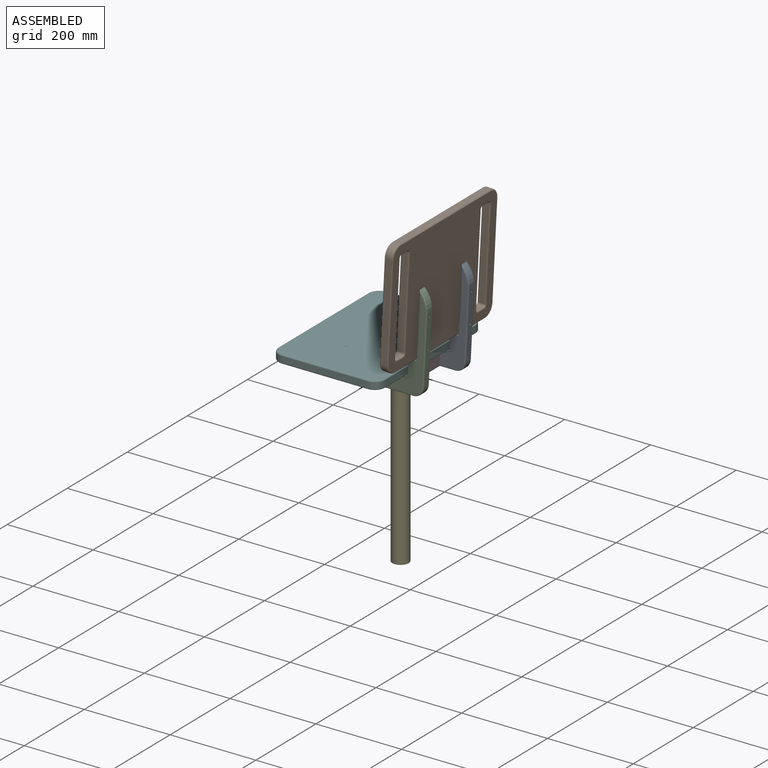
[diagram: assembled view]
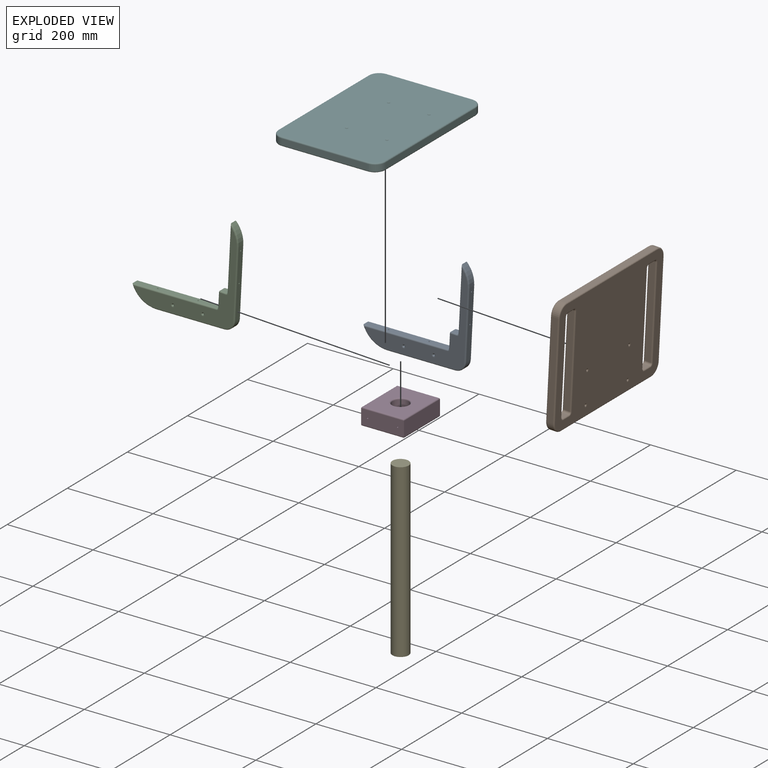
[diagram: exploded view]
GUIDED TOUR — MATED ASSEMBLY (Onshape document 94bc083dbefceb046840a97f, AutoMate assembly 94bc083dbefceb046840a97f_ca4e37d3504dc3343657e244_e1d1bcb1ffec760abd4adb8a_default)

This assembly has 6 components, labeled P0..P5 below (a component is one placed occurrence of a part; the same part can appear more than once), held together by 5 mates. A mate is a constraint between two components; its type names the relative motion it leaves free:
  FASTENED — locks the two components together rigidly (no relative motion).
Axis/direction vectors are unit vectors and 'through' points are millimeter coordinates, both in the assembly's world frame.

MATES
  1. FASTENED "Fastened 5": P4 <-> P3, direction (0.000, 0.000, 1.000) through (-235.38, -67.48, 68.78) mm
  2. FASTENED "Fastened 1": P1 <-> P2, direction (0.999, 0.000, -0.050) through (-142.18, -137.48, 171.57) mm
  3. FASTENED "Fastened 3": P5 <-> P2, direction (0.000, 0.000, -1.000) through (-217.80, -137.48, 108.78) mm
  4. FASTENED "Fastened 4": P3 <-> P2, direction (0.000, -1.000, 0.000) through (-200.38, -127.48, 88.78) mm
  5. FASTENED "Fastened 2": P1 <-> P0, direction (0.999, 0.000, -0.050) through (-142.18, 2.52, 171.57) mm

ASSEMBLY ORDER
  1. P0 — the base component [order verified]
  2. P2 [order verified]
  3. P1 [order verified]
  4. P5 [order verified]
  5. P3 [order verified]
  6. P4 [order verified]
Order-tag legend:
  [order verified] — this step's position reverses a verified removal order: the component was checked to insert without passing through the ones already placed.

Of the 6 components, 6 carry the full construction recipe — the FeatureScript program that regenerates the part's solid from scratch; the rest are supplied as boundary geometry only.
Each toured component is shown spotlighted twice — in the assembled view, then in the exploded view, where a leader line traces a displaced component back to its assembled socket (saturated green if recipe-attached, orange if geometry-only; every other component desaturated gray) — followed by its recipe or geometry summary and the mates that hold it.
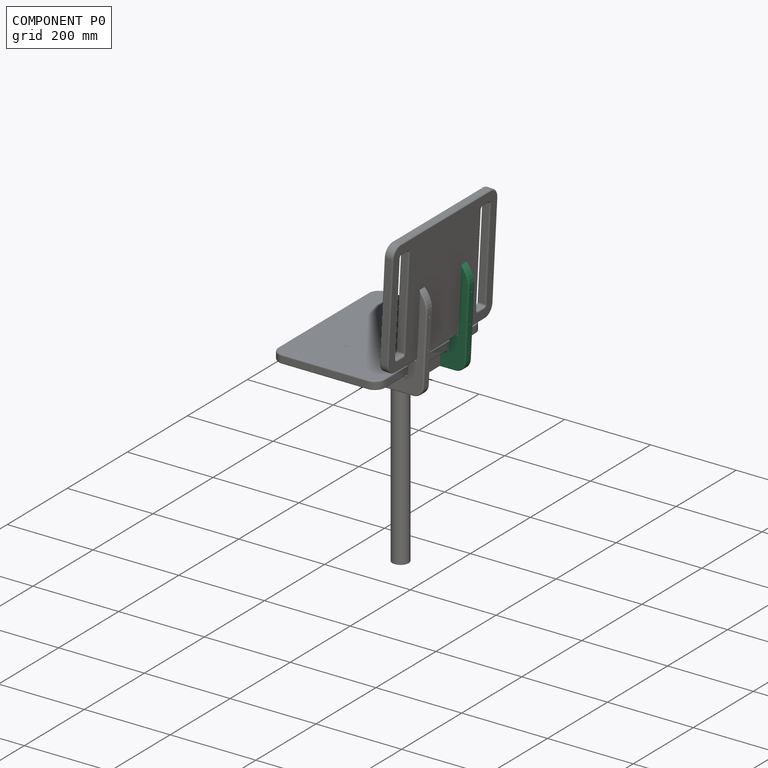
[diagram: component P0 — assembled]
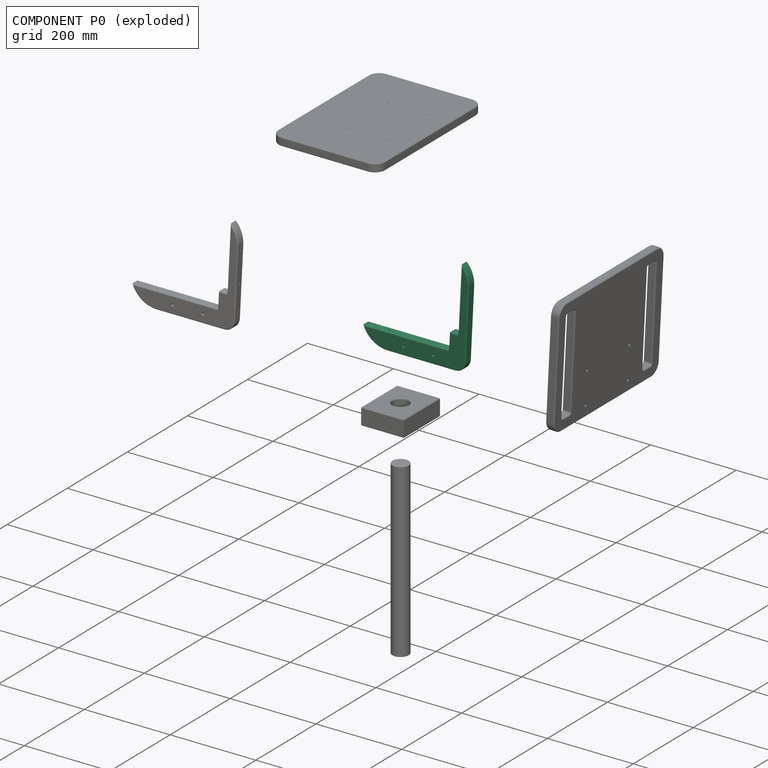
[diagram: component P0 — exploded]
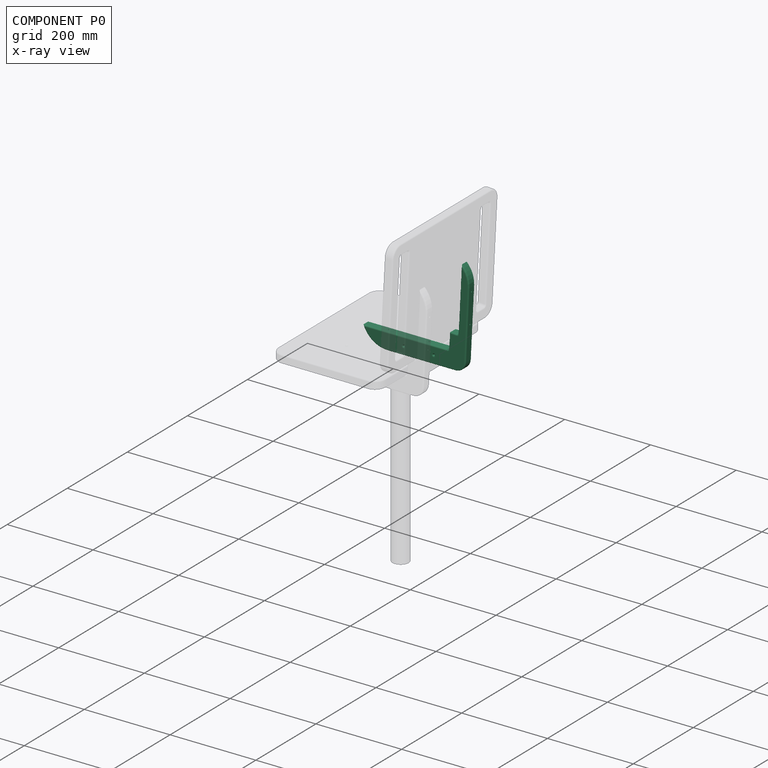
[diagram: component P0 — x-ray view]
COMPONENT P0 — recipe-attached (CADFS 00495782, mesh-verified: the recipe's output STEP matches this component's geometry to below the mesh-comparison resolution (tessellation chordal tolerance ~0.505 mm)).
Held by: FASTENED mate "Fastened 2" to P1.
Construction recipe (FeatureScript — the CAD program that rebuilds this solid; sketch coordinates are in the units given by the * unit suffixes, e.g. mm):

FeatureScript 1511;
import(path : "onshape/std/geometry.fs", version : "1511.0");
import(path : "onshape/std/common.fs", version : "1511.0");
const mm = millimeter;
const VERTEX = EntityType.VERTEX;
const EDGE = EntityType.EDGE;
const FACE = EntityType.FACE;
const BODY = EntityType.BODY;
function v(x, y){return vector(x, y);}
function OD(order){return orderDisambiguation(order);}
function OSD(set){return originalSetDisambiguation(set);}
function TD(topology){return topologyDisambiguation(topology);}
function TDD(query){return trueDependencyDisambiguation(query);}
function sQuery(a, b, c) {return sketchEntityQuery(a, b, c);}

annotation { "Feature Type Name" : "Feature", "Feature Type Description" : "" }
export const myFeature = defineFeature(function(context is Context, id is Id, definition is map)
    precondition{}
    {
        {
            var Q0;
            Q0=qCreatedBy(makeId("Front.planeOp"),FACE);
            var sketch = newSketch(context, id + "F0", { "sketchPlane" : qUnion([Q0])});
            skLineSegment(sketch, "E0", {"start": v(-200, -0.28) * mm, "end": v(-2.85, -0.28) * mm});
            skLineSegment(sketch, "E1", {"start": v(0.14, 2.57) * mm, "end": v(1.8, 35.56) * mm});
            skLineSegment(sketch, "E2.0", {"start": v(39.23, -16.54) * mm, "end": v(47.22, 141.68) * mm});
            skLineSegment(sketch, "E2.1", {"start": v(-143.43, -40.28) * mm, "end": v(14.26, -40.28) * mm});
            skArc(sketch, "E3", {"start": v(47.22, 141.68) * mm, "mid": v(43.23, 166.41) * mm, "end": v(29.5, 187.36) * mm});
            skArc(sketch, "E4", {"start": v(-143.43, -40.28) * mm, "mid": v(-178.07, -29.27) * mm, "end": v(-200, -0.28) * mm});
            skPoint(sketch, "E5.visualSharp", {"position": v(38.03, -40.28) * mm});
            skArc(sketch, "E5.filletArc", {"start": v(14.26, -40.28) * mm, "mid": v(31.49, -33.4) * mm, "end": v(39.23, -16.54) * mm});
            skPoint(sketch, "E6.firstSnap0", {"position": v(-178.07, -29.27) * mm});
            skLineSegment(sketch, "E7", {"start": v(4.96, 38.4) * mm, "end": v(18.94, 37.7) * mm});
            skLineSegment(sketch, "E8", {"start": v(22.09, 40.54) * mm, "end": v(29.5, 187.36) * mm});
            skPoint(sketch, "E9.visualSharp", {"position": v(21.93, 37.55) * mm});
            skArc(sketch, "E9.filletArc", {"start": v(18.94, 37.7) * mm, "mid": v(21.1, 38.47) * mm, "end": v(22.09, 40.54) * mm});
            skPoint(sketch, "E10.visualSharp", {"position": v(1.96, 38.56) * mm});
            skArc(sketch, "E10.filletArc", {"start": v(4.96, 38.4) * mm, "mid": v(2.8, 37.63) * mm, "end": v(1.8, 35.56) * mm});
            skCircle(sketch, "E11", {"center": v(-105, -20.28) * mm, "radius": 1.5 * mm});
            skCircle(sketch, "E12", {"center": v(-35, -20.28) * mm, "radius": 1.5 * mm});
            skLineSegment(sketch, "E13", {"start": v(-35, -20.28) * mm, "end": v(-105, -20.28) * mm});
            skPoint(sketch, "E14.visualSharp", {"position": v(0, -0.28) * mm});
            skArc(sketch, "E14.filletArc", {"start": v(-2.85, -0.28) * mm, "mid": v(-0.79, 0.55) * mm, "end": v(0.14, 2.57) * mm});
            skLineSegment(sketch, "E15", {"start": v(-35, -20.28) * mm, "end": v(-35, -40.28) * mm});
            skLineSegment(sketch, "E16", {"start": v(-35, -20.28) * mm, "end": v(0, -20.28) * mm});
            skSolve(sketch);
        }
        {
            var Q0;
            Q0=makeQuery(id+"F0.imprint","IMPRINT",FACE,{"disambiguationData":[TD([[makeQuery(id+"F0.imprint","IMPRINT",EDGE,{"derivedFrom":sQuery(id+"F0.wireOp",EDGE,"E0")}),-1.0]])]});
            extrude(context, id + "F1", {"entities" : qUnion([Q0]), "endBound" : BoundingType.SYMMETRIC, "depth" : 20 * mm});
        }
        {
            var Q0;
            Q0=makeQuery(id+"F1.opExtrude","CAP_FACE",FACE,{"disambiguationData":[OSD([sQuery(id+"F0.wireOp",EDGE,"E0"),sQuery(id+"F0.wireOp",EDGE,"E1"),sQuery(id+"F0.wireOp",EDGE,"E2.0"),sQuery(id+"F0.wireOp",EDGE,"E2.1"),sQuery(id+"F0.wireOp",EDGE,"E3"),sQuery(id+"F0.wireOp",EDGE,"E4"),sQuery(id+"F0.wireOp",EDGE,"E5.filletArc"),sQuery(id+"F0.wireOp",EDGE,"E7"),sQuery(id+"F0.wireOp",EDGE,"E8"),sQuery(id+"F0.wireOp",EDGE,"E9.filletArc"),sQuery(id+"F0.wireOp",EDGE,"E10.filletArc"),sQuery(id+"F0.wireOp",EDGE,"E11"),sQuery(id+"F0.wireOp",EDGE,"E12")])],"isStart":false});
            var Q1;
            Q1=makeQuery(id+"F1.opExtrude","CAP_FACE",FACE,{"disambiguationData":[OSD([sQuery(id+"F0.wireOp",EDGE,"E0"),sQuery(id+"F0.wireOp",EDGE,"E1"),sQuery(id+"F0.wireOp",EDGE,"E2.0"),sQuery(id+"F0.wireOp",EDGE,"E2.1"),sQuery(id+"F0.wireOp",EDGE,"E3"),sQuery(id+"F0.wireOp",EDGE,"E4"),sQuery(id+"F0.wireOp",EDGE,"E5.filletArc"),sQuery(id+"F0.wireOp",EDGE,"E7"),sQuery(id+"F0.wireOp",EDGE,"E8"),sQuery(id+"F0.wireOp",EDGE,"E9.filletArc"),sQuery(id+"F0.wireOp",EDGE,"E10.filletArc"),sQuery(id+"F0.wireOp",EDGE,"E11"),sQuery(id+"F0.wireOp",EDGE,"E12")])],"isStart":true});
            fillet(context, id + "F2", {"entities" : qUnion([Q0, Q1]), "radius" : 3 * mm, "tangentPropagation" : true, "allowEdgeOverflow" : false});
        }
        {
            var Q0;
            Q0=makeQuery(id+"F1.opExtrude","SWEPT_FACE",FACE,{"disambiguationData":[OSD([sQuery(id+"F0.wireOp",EDGE,"E0")])]});
            var sketch = newSketch(context, id + "F3", { "sketchPlane" : qUnion([Q0])});
            skLineSegment(sketch, "E17", {"start": v(-2.85, 0) * mm, "end": v(-52.42, 0) * mm});
            skPoint(sketch, "E17.endSnap0", {"position": v(-2.85, 0) * mm});
            skLineSegment(sketch, "E18", {"start": v(-52.42, 0) * mm, "end": v(-146.52, 0) * mm});
            skSolve(sketch);
        }
        {
            var Q0;
            Q0=makeQuery(id+"F1.opExtrude","SWEPT_FACE",FACE,{"disambiguationData":[OSD([sQuery(id+"F0.wireOp",EDGE,"E8")])]});
            var sketch = newSketch(context, id + "F4", { "sketchPlane" : qUnion([Q0])});
            skLineSegment(sketch, "E19", {"start": v(0, 41.6) * mm, "end": v(0, 63.6) * mm});
            skPoint(sketch, "E19.endSnap0", {"position": v(0, 41.6) * mm});
            skLineSegment(sketch, "E20", {"start": v(0, 63.6) * mm, "end": v(0, 133.6) * mm});
            skSolve(sketch);
        }
        {
            var Q0;
            Q0=sQuery(id+"F4.wireOp",VERTEX,"E20.start");
            var Q1;
            Q1=sQuery(id+"F4.wireOp",VERTEX,"E20.end");
            var Q2;
            Q2=makeQuery(id+"F1.opExtrude","SWEPT_BODY",BODY,{"disambiguationData":[OSD([sQuery(id+"F0.wireOp",EDGE,"E0"),sQuery(id+"F0.wireOp",EDGE,"E1"),sQuery(id+"F0.wireOp",EDGE,"E2.0"),sQuery(id+"F0.wireOp",EDGE,"E2.1"),sQuery(id+"F0.wireOp",EDGE,"E3"),sQuery(id+"F0.wireOp",EDGE,"E4"),sQuery(id+"F0.wireOp",EDGE,"E5.filletArc"),sQuery(id+"F0.wireOp",EDGE,"E7"),sQuery(id+"F0.wireOp",EDGE,"E8"),sQuery(id+"F0.wireOp",EDGE,"E9.filletArc"),sQuery(id+"F0.wireOp",EDGE,"E10.filletArc"),sQuery(id+"F0.wireOp",EDGE,"E11"),sQuery(id+"F0.wireOp",EDGE,"E12"),sQuery(id+"F0.wireOp",EDGE,"E14.filletArc")])]});
            hole(context, id + "F5", {"style" : HoleStyle.SIMPLE, "endStyle" : HoleEndStyle.BLIND, "holeDiameter" : 3 * mm, "holeDepth" : 40 * mm, "isTappedThrough" : true, "tappedDepth" : 12 * mm, "tapClearance" : 3, "locations" : qUnion([Q0, Q1]), "scope" : qUnion([Q2])});
        }
        {
            var Q0;
            Q0=sQuery(id+"F3.wireOp",VERTEX,"E18.start");
            var Q1;
            Q1=sQuery(id+"F3.wireOp",VERTEX,"E18.end");
            var Q2;
            Q2=makeQuery(id+"F1.opExtrude","SWEPT_BODY",BODY,{"disambiguationData":[OSD([sQuery(id+"F0.wireOp",EDGE,"E0"),sQuery(id+"F0.wireOp",EDGE,"E1"),sQuery(id+"F0.wireOp",EDGE,"E2.0"),sQuery(id+"F0.wireOp",EDGE,"E2.1"),sQuery(id+"F0.wireOp",EDGE,"E3"),sQuery(id+"F0.wireOp",EDGE,"E4"),sQuery(id+"F0.wireOp",EDGE,"E5.filletArc"),sQuery(id+"F0.wireOp",EDGE,"E7"),sQuery(id+"F0.wireOp",EDGE,"E8"),sQuery(id+"F0.wireOp",EDGE,"E9.filletArc"),sQuery(id+"F0.wireOp",EDGE,"E10.filletArc"),sQuery(id+"F0.wireOp",EDGE,"E11"),sQuery(id+"F0.wireOp",EDGE,"E12"),sQuery(id+"F0.wireOp",EDGE,"E14.filletArc")])]});
            hole(context, id + "F6", {"style" : HoleStyle.SIMPLE, "endStyle" : HoleEndStyle.BLIND, "holeDiameter" : 3 * mm, "holeDepth" : 40 * mm, "isTappedThrough" : true, "tappedDepth" : 12 * mm, "tapClearance" : 3, "locations" : qUnion([Q0, Q1]), "scope" : qUnion([Q2])});
        }
    });
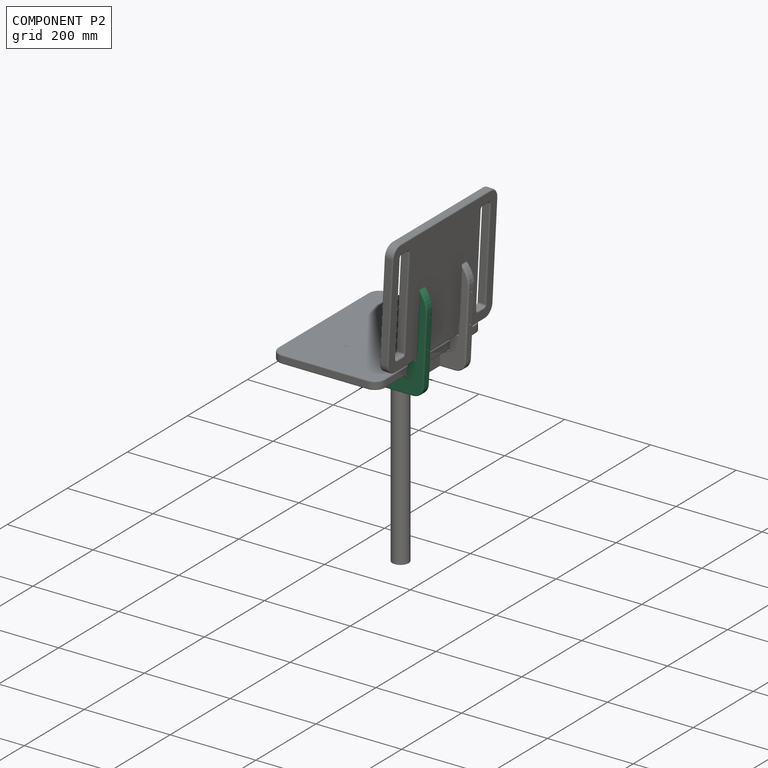
[diagram: component P2 — assembled]
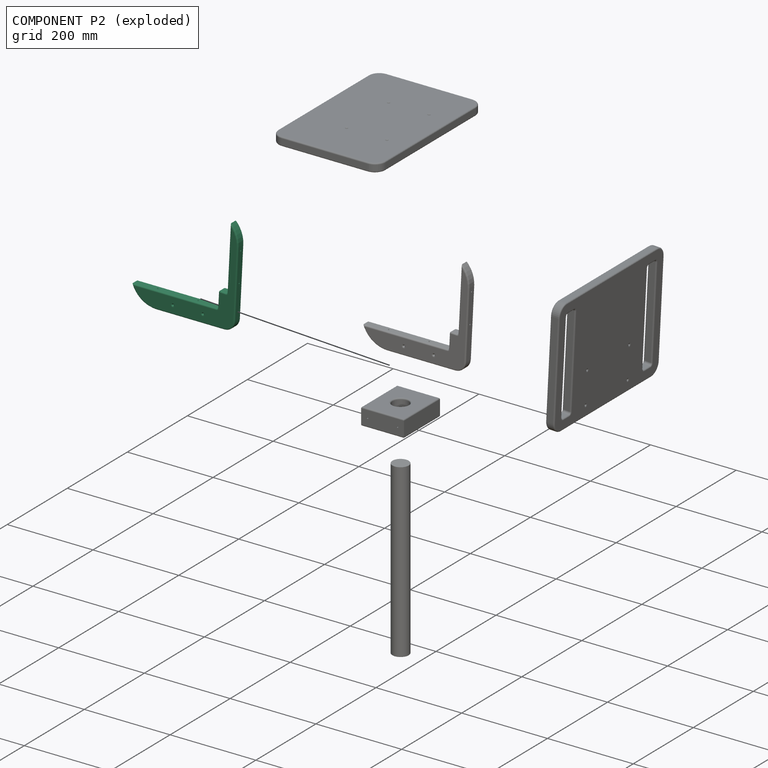
[diagram: component P2 — exploded]
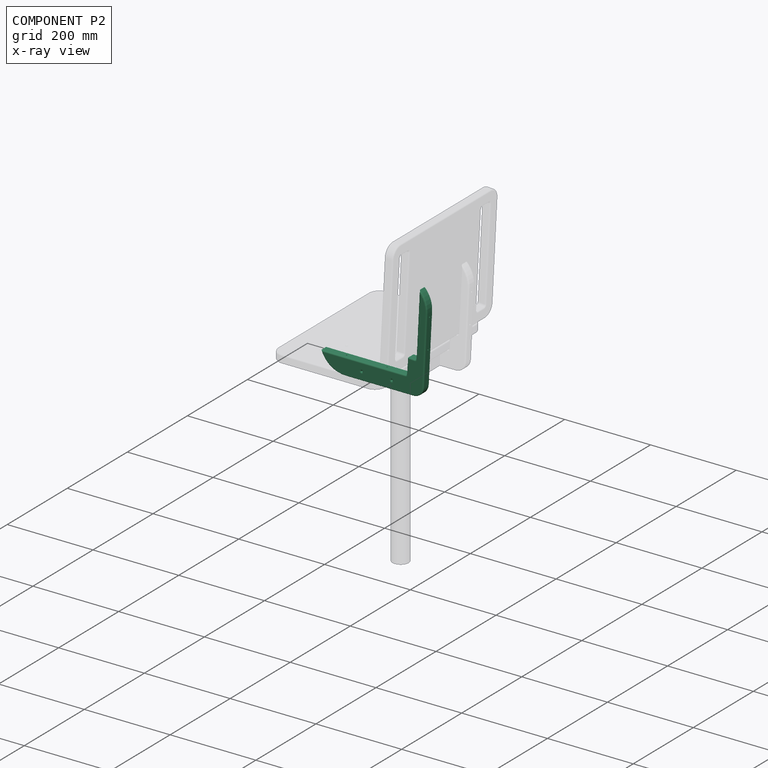
[diagram: component P2 — x-ray view]
COMPONENT P2 — same part as P0 (CADFS 00495782); its construction recipe is shown at P0.
Held by: FASTENED mate "Fastened 1" to P1; FASTENED mate "Fastened 3" to P5; FASTENED mate "Fastened 4" to P3.
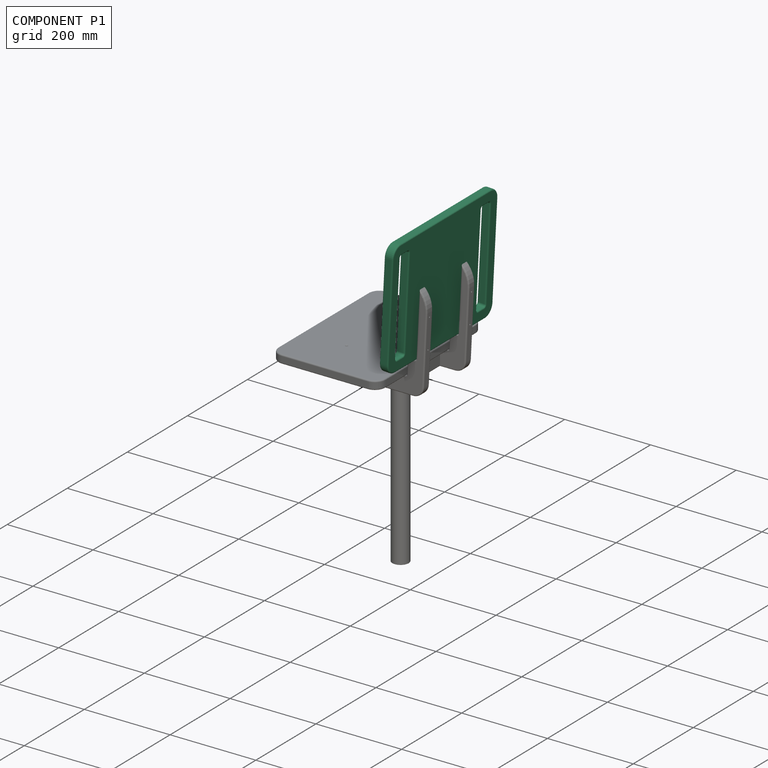
[diagram: component P1 — assembled]
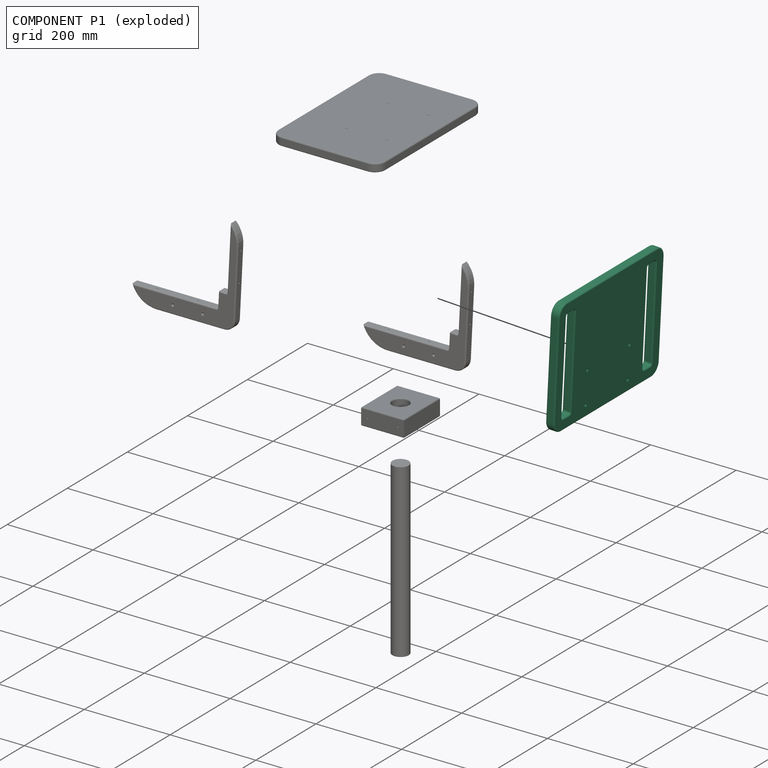
[diagram: component P1 — exploded]
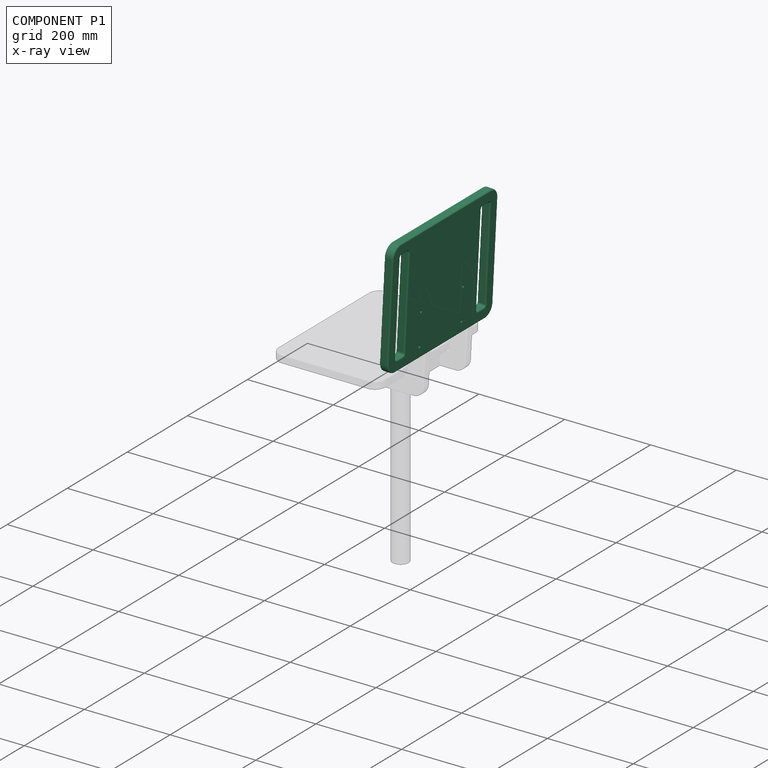
[diagram: component P1 — x-ray view]
COMPONENT P1 — recipe-attached (CADFS 00495779, mesh-verified: the recipe's output STEP matches this component's geometry to below the mesh-comparison resolution (tessellation chordal tolerance ~0.668 mm)).
Held by: FASTENED mate "Fastened 1" to P2; FASTENED mate "Fastened 2" to P0.
Construction recipe (FeatureScript — the CAD program that rebuilds this solid; sketch coordinates are in the units given by the * unit suffixes, e.g. mm):

FeatureScript 1511;
import(path : "onshape/std/geometry.fs", version : "1511.0");
import(path : "onshape/std/common.fs", version : "1511.0");
const mm = millimeter;
const VERTEX = EntityType.VERTEX;
const EDGE = EntityType.EDGE;
const FACE = EntityType.FACE;
const BODY = EntityType.BODY;
function v(x, y){return vector(x, y);}
function OD(order){return orderDisambiguation(order);}
function OSD(set){return originalSetDisambiguation(set);}
function TD(topology){return topologyDisambiguation(topology);}
function TDD(query){return trueDependencyDisambiguation(query);}
function sQuery(a, b, c) {return sketchEntityQuery(a, b, c);}

annotation { "Feature Type Name" : "Feature", "Feature Type Description" : "" }
export const myFeature = defineFeature(function(context is Context, id is Id, definition is map)
    precondition{}
    {
        {
            var Q0;
            Q0=qCreatedBy(makeId("Front.planeOp"),FACE);
            var sketch = newSketch(context, id + "F0", { "sketchPlane" : qUnion([Q0])});
            skPoint(sketch, "E0", {"position": v(0, -0.73) * mm});
            skLineSegment(sketch, "E1", {"start": v(0, 24.04) * mm, "end": v(0, -0.73) * mm});
            skLineSegment(sketch, "E2", {"start": v(0, 174.27) * mm, "end": v(-150, 174.27) * mm});
            skLineSegment(sketch, "E3", {"start": v(-175, 149.27) * mm, "end": v(-175, 24.27) * mm});
            skLineSegment(sketch, "E4", {"start": v(-150, -100.73) * mm, "end": v(0, -100.73) * mm});
            skLineSegment(sketch, "E5", {"start": v(-175, 24.27) * mm, "end": v(-175, -75.73) * mm});
            skPoint(sketch, "E6.visualSharp", {"position": v(-175, 174.27) * mm});
            skArc(sketch, "E6.filletArc", {"start": v(-150, 174.27) * mm, "mid": v(-167.68, 166.94) * mm, "end": v(-175, 149.27) * mm});
            skPoint(sketch, "E7.visualSharp", {"position": v(-175, -100.73) * mm});
            skArc(sketch, "E7.filletArc", {"start": v(-175, -75.73) * mm, "mid": v(-167.68, -93.41) * mm, "end": v(-150, -100.73) * mm});
            skCircle(sketch, "E8", {"center": v(-70, -0.73) * mm, "radius": 1.5 * mm});
            skCircle(sketch, "E9", {"center": v(-70, -75.73) * mm, "radius": 1.5 * mm});
            skLineSegment(sketch, "E10.MirrorCS", {"start": v(0, 174.27) * mm, "end": v(150, 174.27) * mm});
            skArc(sketch, "E11.MirrorCS", {"start": v(150, 174.27) * mm, "mid": v(167.68, 166.94) * mm, "end": v(175, 149.27) * mm});
            skLineSegment(sketch, "E12.MirrorCS", {"start": v(175, 149.27) * mm, "end": v(175, 24.27) * mm});
            skArc(sketch, "E13.MirrorCS", {"start": v(175, -75.73) * mm, "mid": v(167.68, -93.41) * mm, "end": v(150, -100.73) * mm});
            skLineSegment(sketch, "E14.MirrorCS", {"start": v(150, -100.73) * mm, "end": v(0, -100.73) * mm});
            skLineSegment(sketch, "E15.MirrorCS", {"start": v(175, 24.27) * mm, "end": v(175, -75.73) * mm});
            skCircle(sketch, "E16.MirrorC", {"center": v(70, -0.73) * mm, "radius": 1.5 * mm});
            skCircle(sketch, "E17.MirrorC", {"center": v(70, -75.73) * mm, "radius": 1.5 * mm});
            skLineSegment(sketch, "E18", {"start": v(0, -0.73) * mm, "end": v(0, -82.47) * mm});
            skLineSegment(sketch, "E19", {"start": v(0, -82.47) * mm, "end": v(0, 86.66) * mm});
            skLineSegment(sketch, "E20", {"start": v(-70, -0.73) * mm, "end": v(0, -0.73) * mm});
            skLineSegment(sketch, "E21", {"start": v(0, -0.73) * mm, "end": v(70, -0.73) * mm});
            skLineSegment(sketch, "E22", {"start": v(70, -75.73) * mm, "end": v(0, -75.73) * mm});
            skLineSegment(sketch, "E23", {"start": v(0, -75.73) * mm, "end": v(-70, -75.73) * mm});
            skLineSegment(sketch, "E24", {"start": v(-70, -75.73) * mm, "end": v(-70, -100.73) * mm});
            skLineSegment(sketch, "E25.bottom", {"start": v(-145, 149.27) * mm, "end": v(-125, 149.27) * mm});
            skLineSegment(sketch, "E25.top", {"start": v(-145, -75.73) * mm, "end": v(-125, -75.73) * mm});
            skLineSegment(sketch, "E25.left", {"start": v(-150, 144.27) * mm, "end": v(-150, -70.73) * mm});
            skLineSegment(sketch, "E25.right", {"start": v(-120, 144.27) * mm, "end": v(-120, -70.73) * mm});
            skLineSegment(sketch, "E26.bottom", {"start": v(145, 149.27) * mm, "end": v(125, 149.27) * mm});
            skLineSegment(sketch, "E26.top", {"start": v(145, -75.73) * mm, "end": v(125, -75.73) * mm});
            skLineSegment(sketch, "E26.left", {"start": v(150, 144.27) * mm, "end": v(150, -70.73) * mm});
            skLineSegment(sketch, "E26.right", {"start": v(120, 144.27) * mm, "end": v(120, -70.73) * mm});
            skArc(sketch, "E27.filletArc", {"start": v(-145, 149.27) * mm, "mid": v(-148.54, 147.8) * mm, "end": v(-150, 144.27) * mm});
            skPoint(sketch, "E28.visualSharp", {"position": v(-120, 149.27) * mm});
            skArc(sketch, "E28.filletArc", {"start": v(-120, 144.27) * mm, "mid": v(-121.46, 147.8) * mm, "end": v(-125, 149.27) * mm});
            skPoint(sketch, "E29.visualSharp", {"position": v(-120, -75.73) * mm});
            skArc(sketch, "E29.filletArc", {"start": v(-125, -75.73) * mm, "mid": v(-121.46, -74.27) * mm, "end": v(-120, -70.73) * mm});
            skArc(sketch, "E30.filletArc", {"start": v(-150, -70.73) * mm, "mid": v(-148.54, -74.27) * mm, "end": v(-145, -75.73) * mm});
            skArc(sketch, "E31.filletArc", {"start": v(150, 144.27) * mm, "mid": v(148.54, 147.8) * mm, "end": v(145, 149.27) * mm});
            skArc(sketch, "E32.filletArc", {"start": v(145, -75.73) * mm, "mid": v(148.54, -74.27) * mm, "end": v(150, -70.73) * mm});
            skPoint(sketch, "E33.visualSharp", {"position": v(120, -75.73) * mm});
            skArc(sketch, "E33.filletArc", {"start": v(120, -70.73) * mm, "mid": v(121.46, -74.27) * mm, "end": v(125, -75.73) * mm});
            skPoint(sketch, "E34.visualSharp", {"position": v(120, 149.27) * mm});
            skArc(sketch, "E34.filletArc", {"start": v(125, 149.27) * mm, "mid": v(121.46, 147.8) * mm, "end": v(120, 144.27) * mm});
            skSolve(sketch);
        }
        {
            var Q0;
            Q0=makeQuery(id+"F0.imprint","IMPRINT",FACE,{"disambiguationData":[TD([[makeQuery(id+"F0.imprint","IMPRINT",EDGE,{"derivedFrom":sQuery(id+"F0.wireOp",EDGE,"E2")}),1.0]])]});
            extrude(context, id + "F1", {"entities" : qUnion([Q0]), "endBound" : BoundingType.SYMMETRIC, "depth" : 20 * mm});
        }
        {
            var Q0;
            Q0=makeQuery(id+"F1.opExtrude","CAP_FACE",FACE,{"disambiguationData":[OSD([sQuery(id+"F0.wireOp",EDGE,"E2"),sQuery(id+"F0.wireOp",EDGE,"E3"),sQuery(id+"F0.wireOp",EDGE,"E4"),sQuery(id+"F0.wireOp",EDGE,"E5"),sQuery(id+"F0.wireOp",EDGE,"E6.filletArc"),sQuery(id+"F0.wireOp",EDGE,"E7.filletArc"),sQuery(id+"F0.wireOp",EDGE,"E8"),sQuery(id+"F0.wireOp",EDGE,"E9"),sQuery(id+"F0.wireOp",EDGE,"E10.MirrorCS"),sQuery(id+"F0.wireOp",EDGE,"E11.MirrorCS"),sQuery(id+"F0.wireOp",EDGE,"E12.MirrorCS"),sQuery(id+"F0.wireOp",EDGE,"E13.MirrorCS"),sQuery(id+"F0.wireOp",EDGE,"E14.MirrorCS"),sQuery(id+"F0.wireOp",EDGE,"E15.MirrorCS"),sQuery(id+"F0.wireOp",EDGE,"E16.MirrorC"),sQuery(id+"F0.wireOp",EDGE,"E17.MirrorC")])],"isStart":true});
            var Q1;
            Q1=makeQuery(id+"F1.opExtrude","CAP_FACE",FACE,{"disambiguationData":[OSD([sQuery(id+"F0.wireOp",EDGE,"E2"),sQuery(id+"F0.wireOp",EDGE,"E3"),sQuery(id+"F0.wireOp",EDGE,"E4"),sQuery(id+"F0.wireOp",EDGE,"E5"),sQuery(id+"F0.wireOp",EDGE,"E6.filletArc"),sQuery(id+"F0.wireOp",EDGE,"E7.filletArc"),sQuery(id+"F0.wireOp",EDGE,"E8"),sQuery(id+"F0.wireOp",EDGE,"E9"),sQuery(id+"F0.wireOp",EDGE,"E10.MirrorCS"),sQuery(id+"F0.wireOp",EDGE,"E11.MirrorCS"),sQuery(id+"F0.wireOp",EDGE,"E12.MirrorCS"),sQuery(id+"F0.wireOp",EDGE,"E13.MirrorCS"),sQuery(id+"F0.wireOp",EDGE,"E14.MirrorCS"),sQuery(id+"F0.wireOp",EDGE,"E15.MirrorCS"),sQuery(id+"F0.wireOp",EDGE,"E16.MirrorC"),sQuery(id+"F0.wireOp",EDGE,"E17.MirrorC")])],"isStart":false});
            fillet(context, id + "F2", {"entities" : qUnion([Q0, Q1]), "radius" : 3 * mm, "tangentPropagation" : true, "allowEdgeOverflow" : false});
        }
    });
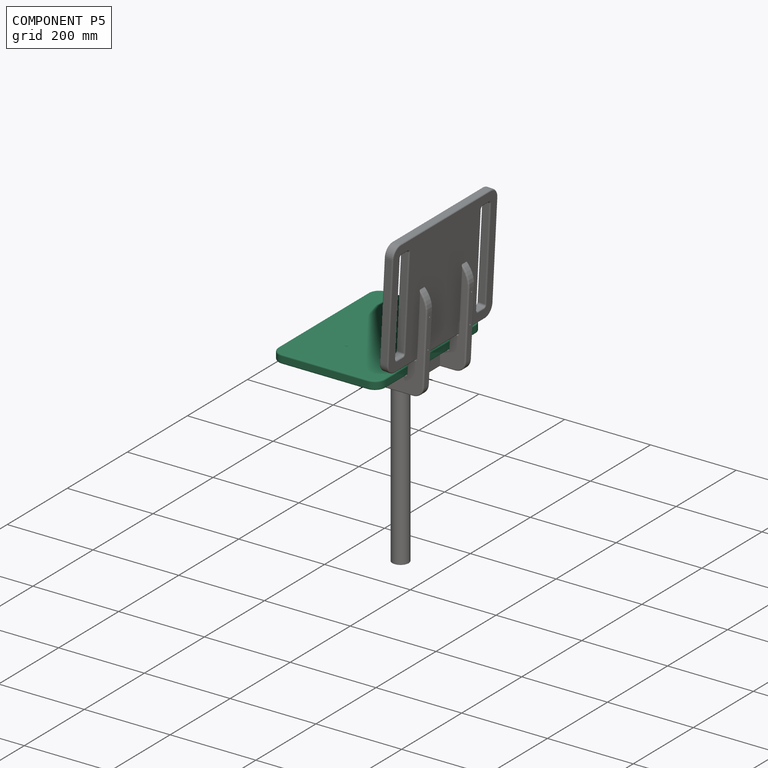
[diagram: component P5 — assembled]
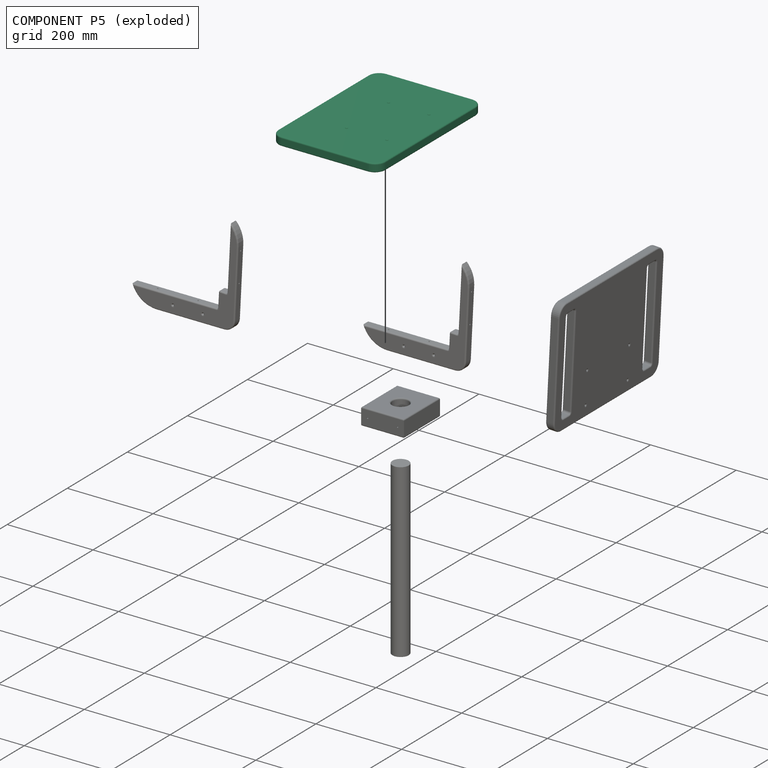
[diagram: component P5 — exploded]
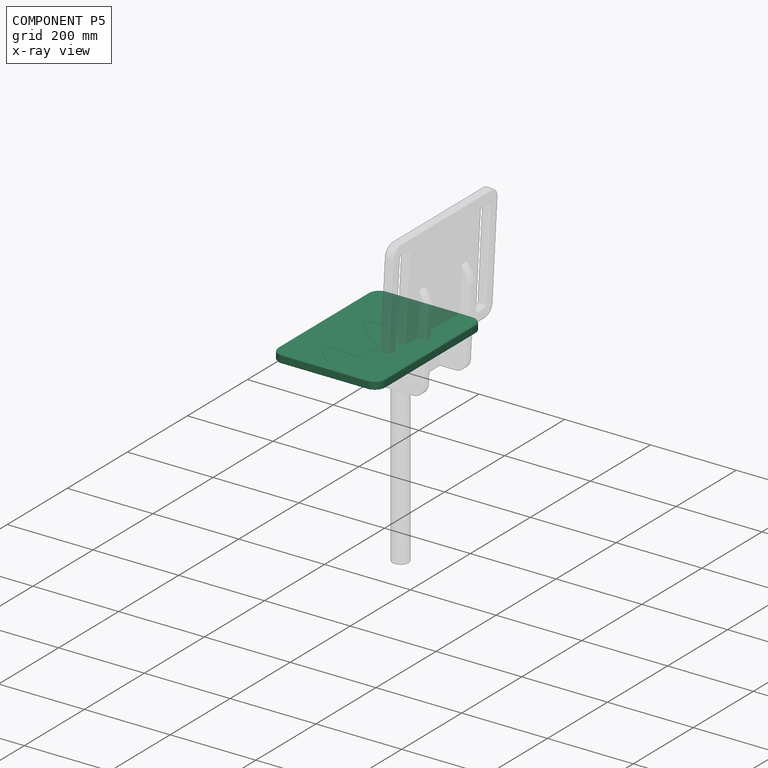
[diagram: component P5 — x-ray view]
COMPONENT P5 — recipe-attached (CADFS 00495777, mesh-verified: the recipe's output STEP matches this component's geometry to below the mesh-comparison resolution (tessellation chordal tolerance ~0.646 mm)).
Held by: FASTENED mate "Fastened 3" to P2.
Construction recipe (FeatureScript — the CAD program that rebuilds this solid; sketch coordinates are in the units given by the * unit suffixes, e.g. mm):

FeatureScript 1511;
import(path : "onshape/std/geometry.fs", version : "1511.0");
import(path : "onshape/std/common.fs", version : "1511.0");
const mm = millimeter;
const VERTEX = EntityType.VERTEX;
const EDGE = EntityType.EDGE;
const FACE = EntityType.FACE;
const BODY = EntityType.BODY;
function v(x, y){return vector(x, y);}
function OD(order){return orderDisambiguation(order);}
function OSD(set){return originalSetDisambiguation(set);}
function TD(topology){return topologyDisambiguation(topology);}
function TDD(query){return trueDependencyDisambiguation(query);}
function sQuery(a, b, c) {return sketchEntityQuery(a, b, c);}

annotation { "Feature Type Name" : "Feature", "Feature Type Description" : "" }
export const myFeature = defineFeature(function(context is Context, id is Id, definition is map)
    precondition{}
    {
        {
            var Q0;
            Q0=qCreatedBy(makeId("Front.planeOp"),FACE);
            var sketch = newSketch(context, id + "F0", { "sketchPlane" : qUnion([Q0])});
            skCircle(sketch, "E0", {"center": v(-70, 56.8) * mm, "radius": 1.5 * mm});
            skCircle(sketch, "E1", {"center": v(70, 56.8) * mm, "radius": 1.5 * mm});
            skLineSegment(sketch, "E2", {"start": v(0, -46.52) * mm, "end": v(-150, -46.52) * mm});
            skLineSegment(sketch, "E3", {"start": v(-150, 203.48) * mm, "end": v(0, 203.48) * mm});
            skLineSegment(sketch, "E4", {"start": v(-175, 178.48) * mm, "end": v(-175, -21.52) * mm});
            skPoint(sketch, "E5.visualSharp", {"position": v(-175, 203.48) * mm});
            skArc(sketch, "E5.filletArc", {"start": v(-150, 203.48) * mm, "mid": v(-167.68, 196.16) * mm, "end": v(-175, 178.48) * mm});
            skPoint(sketch, "E6.visualSharp", {"position": v(-175, -46.52) * mm});
            skArc(sketch, "E6.filletArc", {"start": v(-175, -21.52) * mm, "mid": v(-167.68, -39.2) * mm, "end": v(-150, -46.52) * mm});
            skCircle(sketch, "E7", {"center": v(-70, 150.9) * mm, "radius": 1.5 * mm});
            skCircle(sketch, "E8", {"center": v(70, 150.9) * mm, "radius": 1.5 * mm});
            skLineSegment(sketch, "E9", {"start": v(0, 216.3) * mm, "end": v(0, 180.85) * mm});
            skLineSegment(sketch, "E10.MirrorCS", {"start": v(150, 203.48) * mm, "end": v(0, 203.48) * mm});
            skArc(sketch, "E11.MirrorCS", {"start": v(150, 203.48) * mm, "mid": v(167.68, 196.16) * mm, "end": v(175, 178.48) * mm});
            skLineSegment(sketch, "E12.MirrorCS", {"start": v(175, 178.48) * mm, "end": v(175, -21.52) * mm});
            skLineSegment(sketch, "E13.MirrorCS", {"start": v(0, -46.52) * mm, "end": v(150, -46.52) * mm});
            skArc(sketch, "E14.MirrorCS", {"start": v(175, -21.52) * mm, "mid": v(167.68, -39.2) * mm, "end": v(150, -46.52) * mm});
            skLineSegment(sketch, "E15", {"start": v(0, 180.85) * mm, "end": v(0, 47.75) * mm});
            skLineSegment(sketch, "E16", {"start": v(-70, 150.9) * mm, "end": v(0, 150.9) * mm});
            skLineSegment(sketch, "E17", {"start": v(0, 150.9) * mm, "end": v(70, 150.9) * mm});
            skLineSegment(sketch, "E18", {"start": v(70, 56.8) * mm, "end": v(0, 56.8) * mm});
            skLineSegment(sketch, "E19", {"start": v(0, 56.8) * mm, "end": v(-70, 56.8) * mm});
            skPoint(sketch, "E20.endSnap0", {"position": v(-75, 203.48) * mm});
            skSolve(sketch);
        }
        {
            var Q0;
            Q0=makeQuery(id+"F0.imprint","IMPRINT",FACE,{"disambiguationData":[TD([[makeQuery(id+"F0.imprint","IMPRINT",EDGE,{"derivedFrom":sQuery(id+"F0.wireOp",EDGE,"E1")}),-1.0]])]});
            extrude(context, id + "F1", {"entities" : qUnion([Q0]), "endBound" : BoundingType.SYMMETRIC, "depth" : 20 * mm});
        }
        {
            var Q0;
            Q0=makeQuery(id+"F1.opExtrude","CAP_FACE",FACE,{"disambiguationData":[OSD([sQuery(id+"F0.wireOp",EDGE,"E0"),sQuery(id+"F0.wireOp",EDGE,"E1"),sQuery(id+"F0.wireOp",EDGE,"E2"),sQuery(id+"F0.wireOp",EDGE,"E3"),sQuery(id+"F0.wireOp",EDGE,"E4"),sQuery(id+"F0.wireOp",EDGE,"E5.filletArc"),sQuery(id+"F0.wireOp",EDGE,"E6.filletArc"),sQuery(id+"F0.wireOp",EDGE,"922498a0-1a24-4f7e-b6d6-d9dc9f0d9a5e0.MirrorCS"),sQuery(id+"F0.wireOp",EDGE,"cf168904-86be-4b7d-b9ed-cd1ad0f3df690.MirrorCS"),sQuery(id+"F0.wireOp",EDGE,"87c4811f-39fe-40a0-8f0f-8175311cea940.MirrorCS"),sQuery(id+"F0.wireOp",EDGE,"692f735f-b34a-43b6-8e04-aae55bc71afe0.MirrorCS"),sQuery(id+"F0.wireOp",EDGE,"b85d1574-dc12-461e-a240-8f775c5b91060.MirrorCS"),sQuery(id+"F0.wireOp",EDGE,"E7"),sQuery(id+"F0.wireOp",EDGE,"E8")])],"isStart":false});
            var Q1;
            Q1=makeQuery(id+"F1.opExtrude","CAP_FACE",FACE,{"disambiguationData":[OSD([sQuery(id+"F0.wireOp",EDGE,"E0"),sQuery(id+"F0.wireOp",EDGE,"E1"),sQuery(id+"F0.wireOp",EDGE,"E2"),sQuery(id+"F0.wireOp",EDGE,"E3"),sQuery(id+"F0.wireOp",EDGE,"E4"),sQuery(id+"F0.wireOp",EDGE,"E5.filletArc"),sQuery(id+"F0.wireOp",EDGE,"E6.filletArc"),sQuery(id+"F0.wireOp",EDGE,"922498a0-1a24-4f7e-b6d6-d9dc9f0d9a5e0.MirrorCS"),sQuery(id+"F0.wireOp",EDGE,"cf168904-86be-4b7d-b9ed-cd1ad0f3df690.MirrorCS"),sQuery(id+"F0.wireOp",EDGE,"87c4811f-39fe-40a0-8f0f-8175311cea940.MirrorCS"),sQuery(id+"F0.wireOp",EDGE,"692f735f-b34a-43b6-8e04-aae55bc71afe0.MirrorCS"),sQuery(id+"F0.wireOp",EDGE,"b85d1574-dc12-461e-a240-8f775c5b91060.MirrorCS"),sQuery(id+"F0.wireOp",EDGE,"E7"),sQuery(id+"F0.wireOp",EDGE,"E8")])],"isStart":true});
            fillet(context, id + "F2", {"entities" : qUnion([Q0, Q1]), "radius" : 3 * mm, "tangentPropagation" : true, "allowEdgeOverflow" : false});
        }
    });
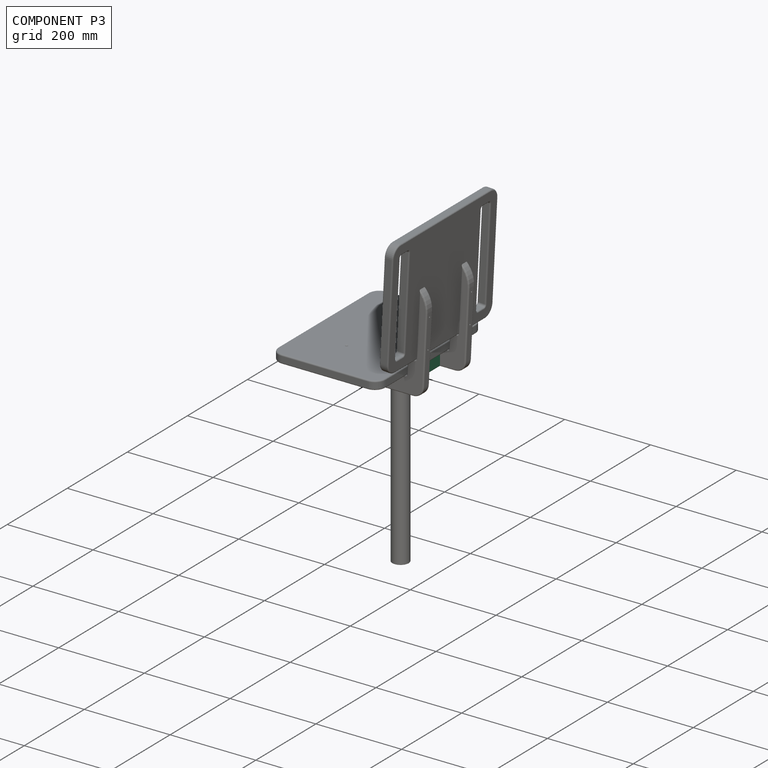
[diagram: component P3 — assembled]
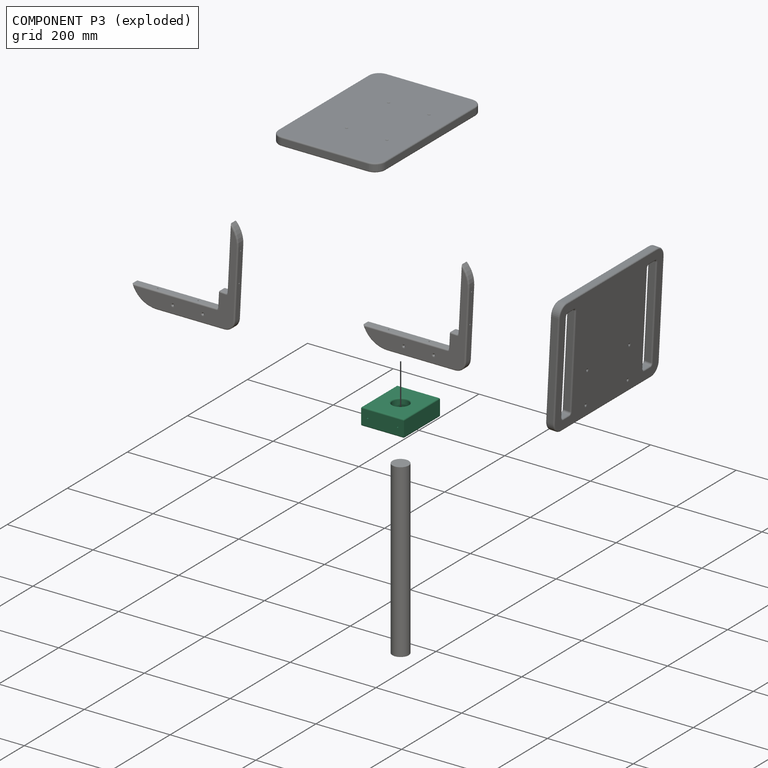
[diagram: component P3 — exploded]
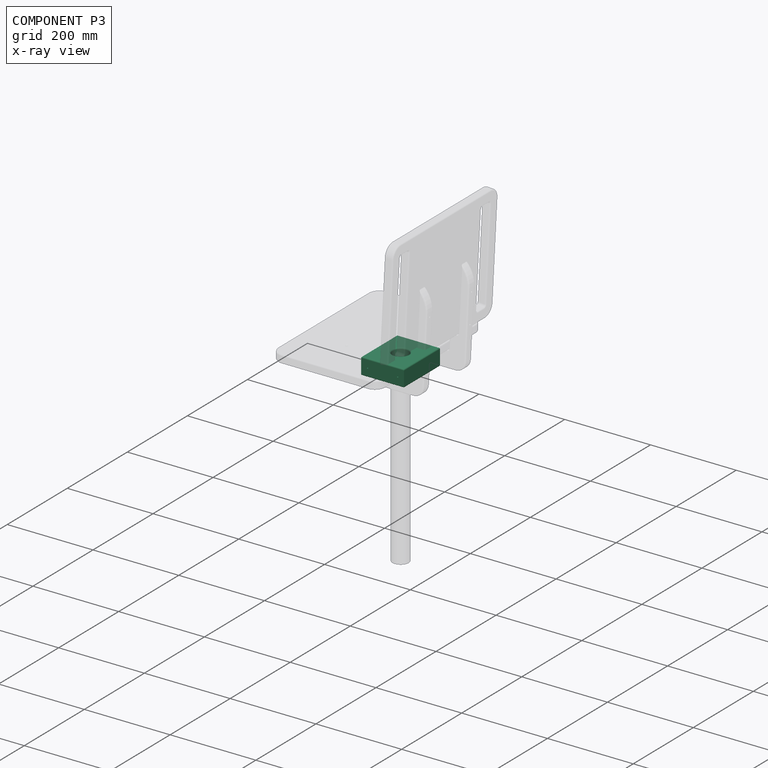
[diagram: component P3 — x-ray view]
COMPONENT P3 — recipe-attached (CADFS 00495775, mesh-verified: the recipe's output STEP matches this component's geometry to below the mesh-comparison resolution (tessellation chordal tolerance ~0.242 mm)).
Held by: FASTENED mate "Fastened 5" to P4; FASTENED mate "Fastened 4" to P2.
Construction recipe (FeatureScript — the CAD program that rebuilds this solid; sketch coordinates are in the units given by the * unit suffixes, e.g. mm):

FeatureScript 1511;
import(path : "onshape/std/geometry.fs", version : "1511.0");
import(path : "onshape/std/common.fs", version : "1511.0");
const mm = millimeter;
const VERTEX = EntityType.VERTEX;
const EDGE = EntityType.EDGE;
const FACE = EntityType.FACE;
const BODY = EntityType.BODY;
function v(x, y){return vector(x, y);}
function OD(order){return orderDisambiguation(order);}
function OSD(set){return originalSetDisambiguation(set);}
function TD(topology){return topologyDisambiguation(topology);}
function TDD(query){return trueDependencyDisambiguation(query);}
function sQuery(a, b, c) {return sketchEntityQuery(a, b, c);}

annotation { "Feature Type Name" : "Feature", "Feature Type Description" : "" }
export const myFeature = defineFeature(function(context is Context, id is Id, definition is map)
    precondition{}
    {
        {
            var Q0;
            Q0=qCreatedBy(makeId("Top.planeOp"),FACE);
            var sketch = newSketch(context, id + "F0", { "sketchPlane" : qUnion([Q0])});
            skLineSegment(sketch, "E0.bottom", {"start": v(-54.66, 75.24) * mm, "end": v(65.34, 75.24) * mm});
            skLineSegment(sketch, "E0.top", {"start": v(-54.66, -24.76) * mm, "end": v(65.34, -24.76) * mm});
            skLineSegment(sketch, "E0.left", {"start": v(-54.66, 75.24) * mm, "end": v(-54.66, 60.24) * mm});
            skLineSegment(sketch, "E0.right", {"start": v(65.34, 75.24) * mm, "end": v(65.34, -24.76) * mm});
            skLineSegment(sketch, "E1", {"start": v(-54.66, 60.24) * mm, "end": v(-54.66, -9.76) * mm});
            skLineSegment(sketch, "E2", {"start": v(-54.66, -9.76) * mm, "end": v(-54.66, -24.76) * mm});
            skPoint(sketch, "E3", {"position": v(-54.66, 25.24) * mm});
            skPoint(sketch, "E4", {"position": v(5.34, 25.24) * mm});
            skCircle(sketch, "E5", {"center": v(5.34, 25.24) * mm, "radius": 19 * mm});
            skPoint(sketch, "E6.orphan", {"position": v(65.34, 25.24) * mm});
            skSolve(sketch);
        }
        {
            var Q0;
            Q0=makeQuery(id+"F0.imprint","IMPRINT",FACE,{"disambiguationData":[TD([[makeQuery(id+"F0.imprint","IMPRINT",EDGE,{"derivedFrom":sQuery(id+"F0.wireOp",EDGE,"E0.bottom")}),-1.0]])]});
            extrude(context, id + "F1", {"entities" : qUnion([Q0]), "endBound" : BoundingType.SYMMETRIC, "depth" : 40 * mm});
        }
        {
            var Q0;
            Q0=makeQuery(id+"F1.opExtrude","CAP_FACE",FACE,{"disambiguationData":[OSD([sQuery(id+"F0.wireOp",EDGE,"E0.bottom"),sQuery(id+"F0.wireOp",EDGE,"E0.top"),sQuery(id+"F0.wireOp",EDGE,"E0.left"),sQuery(id+"F0.wireOp",EDGE,"E0.right"),sQuery(id+"F0.wireOp",EDGE,"E1"),sQuery(id+"F0.wireOp",EDGE,"E2"),sQuery(id+"F0.wireOp",EDGE,"E5")])],"isStart":false});
            var Q1;
            Q1=makeQuery(id+"F1.opExtrude","CAP_EDGE",EDGE,{"disambiguationData":[OSD([sQuery(id+"F0.wireOp",EDGE,"E0.right")])],"isStart":true});
            var Q2;
            Q2=makeQuery(id+"F1.opExtrude","CAP_FACE",FACE,{"disambiguationData":[OSD([sQuery(id+"F0.wireOp",EDGE,"E0.bottom"),sQuery(id+"F0.wireOp",EDGE,"E0.top"),sQuery(id+"F0.wireOp",EDGE,"E0.left"),sQuery(id+"F0.wireOp",EDGE,"E0.right"),sQuery(id+"F0.wireOp",EDGE,"E1"),sQuery(id+"F0.wireOp",EDGE,"E2"),sQuery(id+"F0.wireOp",EDGE,"E5")])],"isStart":true});
            fillet(context, id + "F2", {"entities" : qUnion([Q0, Q1, Q2]), "radius" : 3 * mm, "tangentPropagation" : true, "allowEdgeOverflow" : false});
        }
        {
            var Q0;
            Q0=makeQuery(id+"F1.opExtrude","SWEPT_FACE",FACE,{"disambiguationData":[OSD([sQuery(id+"F0.wireOp",EDGE,"E0.left"),sQuery(id+"F0.wireOp",EDGE,"E1"),sQuery(id+"F0.wireOp",EDGE,"E2")])]});
            var sketch = newSketch(context, id + "F3", { "sketchPlane" : qUnion([Q0])});
            skLineSegment(sketch, "E7", {"start": v(-60.24, 0) * mm, "end": v(9.76, 0) * mm});
            skPoint(sketch, "E8.start.orphan", {"position": v(-75.24, 0) * mm});
            skPoint(sketch, "E9.end.orphan", {"position": v(24.76, 0) * mm});
            skSolve(sketch);
        }
        {
            var Q0;
            Q0=sQuery(id+"F3.wireOp",VERTEX,"E7.end");
            var Q1;
            Q1=sQuery(id+"F3.wireOp",VERTEX,"E7.start");
            var Q2;
            Q2=makeQuery(id+"F1.opExtrude","SWEPT_BODY",BODY,{"disambiguationData":[OSD([sQuery(id+"F0.wireOp",EDGE,"E0.bottom"),sQuery(id+"F0.wireOp",EDGE,"E0.top"),sQuery(id+"F0.wireOp",EDGE,"E0.left"),sQuery(id+"F0.wireOp",EDGE,"E0.right"),sQuery(id+"F0.wireOp",EDGE,"E1"),sQuery(id+"F0.wireOp",EDGE,"E2"),sQuery(id+"F0.wireOp",EDGE,"E5")])]});
            hole(context, id + "F4", {"style" : HoleStyle.SIMPLE, "endStyle" : HoleEndStyle.BLIND, "holeDiameter" : 3 * mm, "holeDepth" : 40 * mm, "isTappedThrough" : true, "tappedDepth" : 12 * mm, "tapClearance" : 3, "locations" : qUnion([Q0, Q1]), "scope" : qUnion([Q2])});
        }
        {
            var Q0;
            Q0=makeQuery(id+"F1.opExtrude","SWEPT_FACE",FACE,{"disambiguationData":[OSD([sQuery(id+"F0.wireOp",EDGE,"E0.right")])]});
            var sketch = newSketch(context, id + "F5", { "sketchPlane" : qUnion([Q0])});
            skPoint(sketch, "E10.endSnap0", {"position": v(75.24, 0) * mm});
            skLineSegment(sketch, "E11", {"start": v(60.24, 0) * mm, "end": v(-9.76, 0) * mm});
            skPoint(sketch, "E10.start.orphan", {"position": v(75.24, 0) * mm});
            skSolve(sketch);
        }
        {
            var Q0;
            Q0=sQuery(id+"F5.wireOp",VERTEX,"E11.start");
            var Q1;
            Q1=sQuery(id+"F5.wireOp",VERTEX,"E11.end");
            var Q2;
            Q2=makeQuery(id+"F1.opExtrude","SWEPT_BODY",BODY,{"disambiguationData":[OSD([sQuery(id+"F0.wireOp",EDGE,"E0.bottom"),sQuery(id+"F0.wireOp",EDGE,"E0.top"),sQuery(id+"F0.wireOp",EDGE,"E0.left"),sQuery(id+"F0.wireOp",EDGE,"E0.right"),sQuery(id+"F0.wireOp",EDGE,"E1"),sQuery(id+"F0.wireOp",EDGE,"E2"),sQuery(id+"F0.wireOp",EDGE,"E5")])]});
            hole(context, id + "F6", {"style" : HoleStyle.SIMPLE, "endStyle" : HoleEndStyle.BLIND, "holeDiameter" : 3 * mm, "holeDepth" : 40 * mm, "isTappedThrough" : true, "tappedDepth" : 12 * mm, "tapClearance" : 3, "locations" : qUnion([Q0, Q1]), "scope" : qUnion([Q2])});
        }
    });
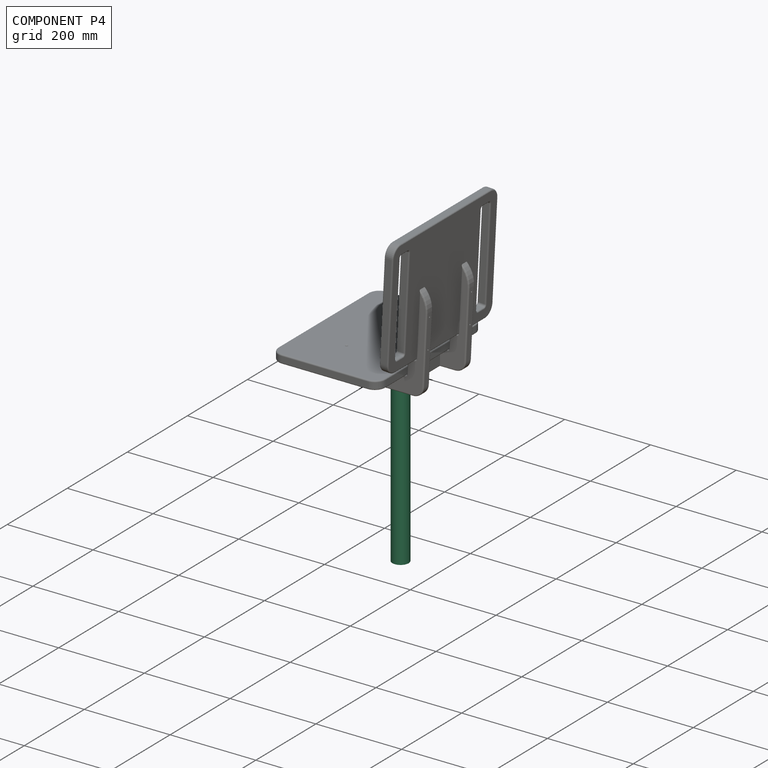
[diagram: component P4 — assembled]
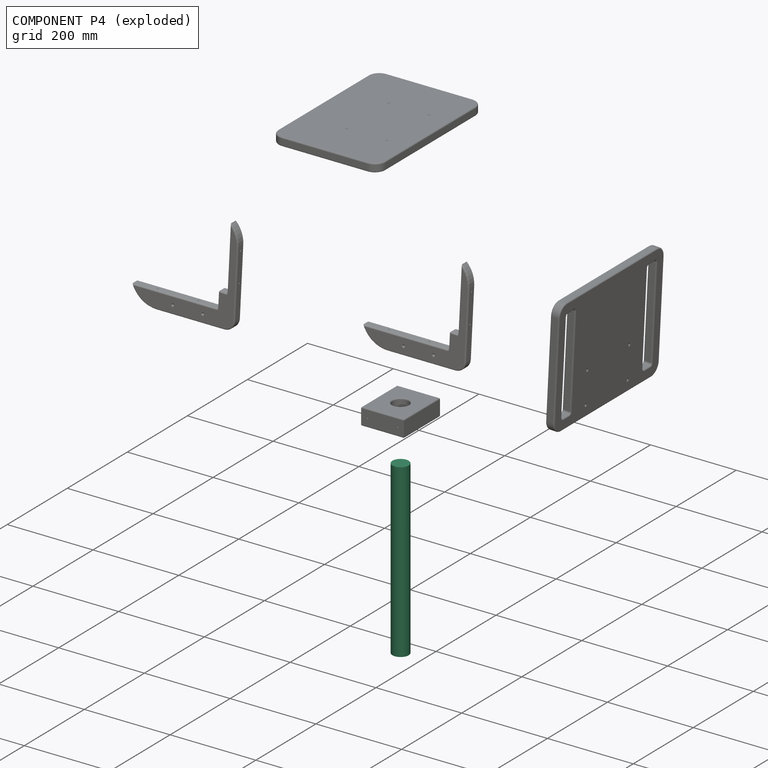
[diagram: component P4 — exploded]
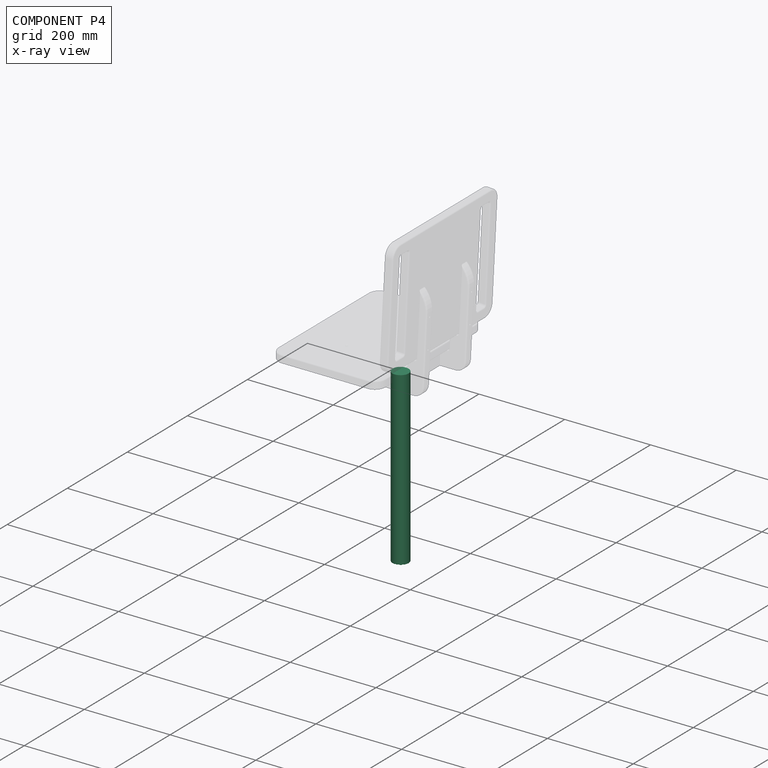
[diagram: component P4 — x-ray view]
COMPONENT P4 — recipe-attached (CADFS 00495776, mesh-verified: the recipe's output STEP matches this component's geometry to below the mesh-comparison resolution (tessellation chordal tolerance ~0.605 mm)).
Held by: FASTENED mate "Fastened 5" to P3.
Construction recipe (FeatureScript — the CAD program that rebuilds this solid; sketch coordinates are in the units given by the * unit suffixes, e.g. mm):

FeatureScript 1511;
import(path : "onshape/std/geometry.fs", version : "1511.0");
import(path : "onshape/std/common.fs", version : "1511.0");
const mm = millimeter;
const VERTEX = EntityType.VERTEX;
const EDGE = EntityType.EDGE;
const FACE = EntityType.FACE;
const BODY = EntityType.BODY;
function v(x, y){return vector(x, y);}
function OD(order){return orderDisambiguation(order);}
function OSD(set){return originalSetDisambiguation(set);}
function TD(topology){return topologyDisambiguation(topology);}
function TDD(query){return trueDependencyDisambiguation(query);}
function sQuery(a, b, c) {return sketchEntityQuery(a, b, c);}

annotation { "Feature Type Name" : "Feature", "Feature Type Description" : "" }
export const myFeature = defineFeature(function(context is Context, id is Id, definition is map)
    precondition{}
    {
        {
            var Q0;
            Q0=qCreatedBy(makeId("Front.planeOp"),FACE);
            var sketch = newSketch(context, id + "F0", { "sketchPlane" : qUnion([Q0])});
            skCircle(sketch, "E0", {"center": v(-51.25, 40.73) * mm, "radius": 19 * mm});
            skSolve(sketch);
        }
        {
            var Q0;
            Q0 = qSketchRegion(id + "F0", true);
            extrude(context, id + "F1", {"entities" : qUnion([Q0]), "endBound" : BoundingType.SYMMETRIC, "depth" : 400 * mm});
        }
    });
PROVENANCE & LICENSES
Assembly (occurrences, transforms, mates, per-part STEP geometry): AutoMate dataset, Zenodo record 7776208, CC0.
Construction recipes: CADFS (HuggingFace VladPyatov/CADFS, CC-BY-4.0, layered over the ABC dataset), FeatureScript reconstruction programs keyed by ABC model id.
Join: ABC meta listings map ABC model id -> Onshape documentId; within a shared document, parts are matched by geometric signature (bounding-box dims + volume at 0.1% relative tolerance, exact B-rep face/solid counts).
Verification: 6 of this assembly's 6 components carry a recipe attachment, and every attachment is mesh-verified: the CADFS STEP and the AutoMate member STEP were compared as meshes in their shared local frame (symmetric sampled-point-to-mesh distance); worst across the 6 attachments: below the mesh-comparison resolution (tessellation chordal tolerance ~0.668 mm) on a 446 mm part.
Renders: orthographic iso camera (az 35 / el 25); the floor grid conveys scale (grid pitch printed in each image; no ruler). In the exploded view each component is displaced by its stored offset vector: the offsets alone carry the explosion direction (mate normal/axis signs are not orientation cues and do not encode it), and separation distances are assigned per mate-chain, not proportionally to assembly-order depth.
